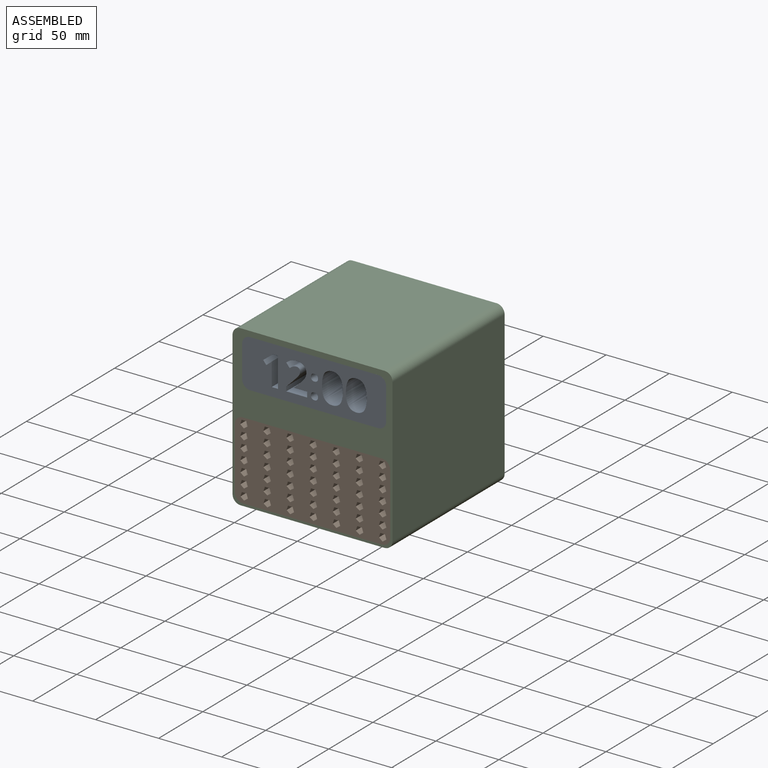
[diagram: assembled view]
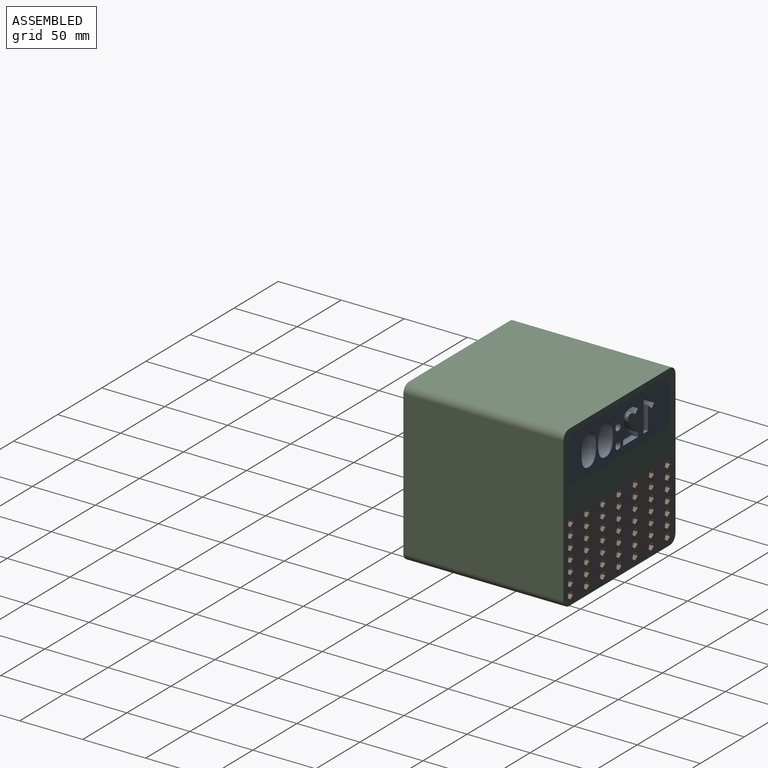
[diagram: assembled view, second angle]
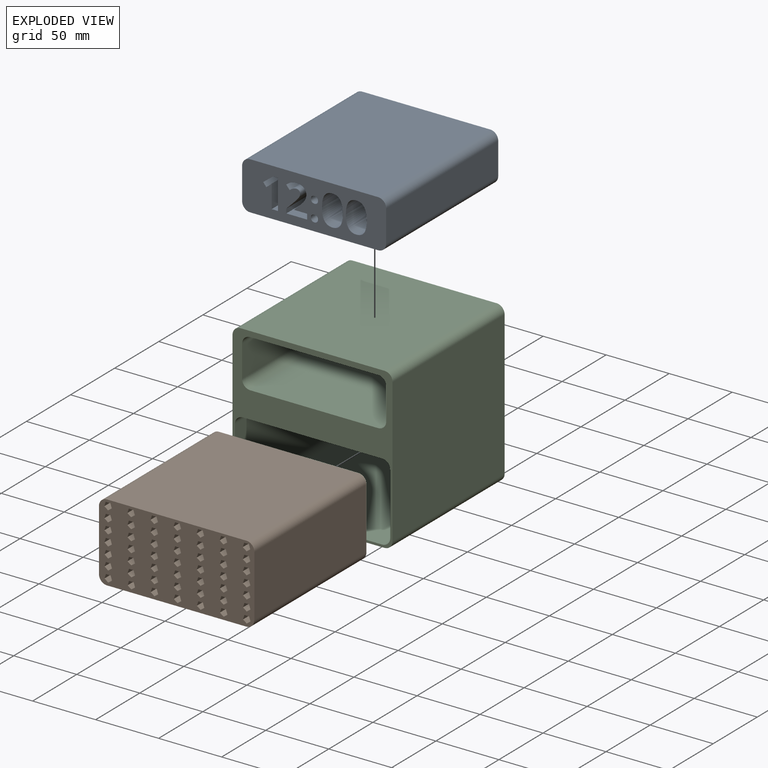
[diagram: exploded view]
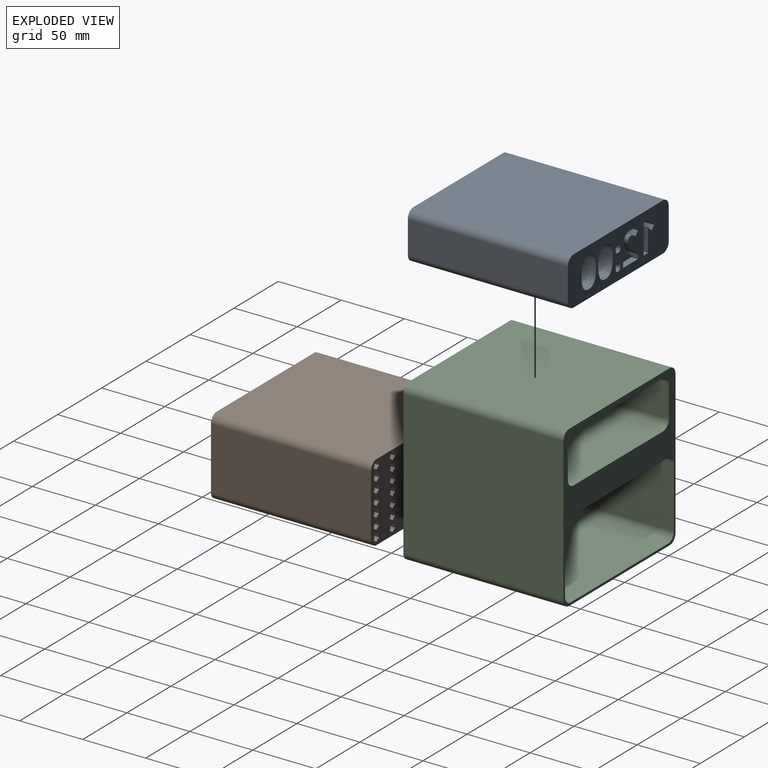
[diagram: exploded view, second angle]
ASSEMBLY  parts=3 mates=2
PART A: 76 faces, bbox 114.3x127x38.1 mm
  f0: extruded ~127x6.2mm, area 921.5mm2, adj f1,f73,f74,f75
  f1: extruded ~127x9.12mm, area 1205.2mm2, adj f0,f2,f74,f75
  f2: extruded ~127x9.19mm, area 1212.6mm2, adj f1,f3,f74,f75
  f3: extruded ~127x6.27mm, area 921.1mm2, adj f2,f4,f74,f75
  f4: extruded ~127x6.19mm, area 917.7mm2, adj f3,f5,f74,f75
  f5: extruded ~127x9.1mm, area 1202.2mm2, adj f4,f6,f74,f75
  f6: extruded ~127x9.26mm, area 1220.3mm2, adj f5,f73,f74,f75
  f7: extruded ~127x6.2mm, area 921.5mm2, adj f8,f67,f74,f75
  f8: extruded ~127x9.12mm, area 1205.2mm2, adj f7,f9,f74,f75
  f9: extruded ~127x9.19mm, area 1212.6mm2, adj f8,f10,f74,f75
  f10: extruded ~127x6.27mm, area 921.1mm2, adj f9,f11,f74,f75
  f11: extruded ~127x6.19mm, area 917.7mm2, adj f10,f12,f74,f75
  f12: extruded ~127x9.1mm, area 1202.2mm2, adj f11,f13,f74,f75
  f13: extruded ~127x9.26mm, area 1220.3mm2, adj f12,f67,f74,f75
  f14: extruded ~127x2.11mm, area 290.1mm2, adj f15,f68,f74,f75
  f15: extruded ~127x2.04mm, area 284mm2, adj f14,f16,f74,f75
  f16: extruded ~127x2.06mm, area 285.5mm2, adj f15,f17,f74,f75
  f17: extruded ~127x2.13mm, area 291.1mm2, adj f16,f18,f74,f75
  f18: extruded ~127x2.08mm, area 286.7mm2, adj f17,f19,f74,f75
  f19: extruded ~127x2.04mm, area 283.6mm2, adj f18,f20,f74,f75
  f20: extruded ~127x2.03mm, area 283.5mm2, adj f19,f68,f74,f75
  f21: extruded ~127x2.11mm, area 290.5mm2, adj f22,f69,f74,f75
  f22: extruded ~127x2.03mm, area 283mm2, adj f21,f23,f74,f75
  f23: extruded ~127x2.06mm, area 285.2mm2, adj f22,f24,f74,f75
  f24: extruded ~127x2.13mm, area 291.3mm2, adj f23,f25,f74,f75
  f25: extruded ~127x2.08mm, area 286.7mm2, adj f24,f26,f74,f75
  f26: extruded ~127x2.04mm, area 283.6mm2, adj f25,f27,f74,f75
  f27: extruded ~127x2.02mm, area 280.9mm2, adj f26,f69,f74,f75
  f28: plane 127x10.33mm, normal (0,0,-1), area 1312.3mm2, adj f29,f70,f74,f75
  f29: plane 127x4.22mm, normal (-1,0,0), area 535.9mm2, adj f28,f30,f74,f75
  f30: plane 127x16.58mm, normal (0,0,1), area 2105.3mm2, adj f29,f31,f74,f75
  f31: plane 127x3.49mm, normal (1,0,0), area 442.9mm2, adj f30,f32,f74,f75
  f32: plane 127x6.02mm, normal (0.71,0,-0.7), area 1074.8mm2, adj f31,f33,f74,f75
  f33: extruded ~127x3.76mm, area 648.4mm2, adj f32,f34,f74,f75
  f34: extruded ~127x1.94mm, area 288.3mm2, adj f33,f35,f74,f75
  f35: extruded ~127x1.85mm, area 240.5mm2, adj f34,f36,f74,f75
  f36: extruded ~127x2.13mm, area 297mm2, adj f35,f37,f74,f75
  f37: extruded ~127x2.1mm, area 287.8mm2, adj f36,f38,f74,f75
  f38: extruded ~127x2.67mm, area 351.9mm2, adj f37,f39,f74,f75
  f39: extruded ~127x2.71mm, area 414.1mm2, adj f38,f40,f74,f75
  f40: plane 127x3.23mm, normal (0.76,0,0.65), area 536.5mm2, adj f39,f41,f74,f75
  f41: extruded ~127x2.9mm, area 456.4mm2, adj f40,f42,f74,f75
  f42: extruded ~127x2.51mm, area 342.2mm2, adj f41,f43,f74,f75
  f43: extruded ~127x3.05mm, area 390.5mm2, adj f42,f44,f74,f75
  f44: extruded ~127x3.92mm, area 513mm2, adj f43,f45,f74,f75
  f45: extruded ~127x2.64mm, area 448.5mm2, adj f44,f46,f74,f75
  f46: extruded ~127x3.34mm, area 447mm2, adj f45,f47,f74,f75
  f47: extruded ~127x3.08mm, area 399.8mm2, adj f46,f48,f74,f75
  f48: extruded ~127x2.94mm, area 438.7mm2, adj f47,f49,f74,f75
  f49: extruded ~127x4.3mm, area 769mm2, adj f48,f50,f74,f75
  f50: plane 127x3.05mm, normal (-0.69,0,0.73), area 532mm2, adj f49,f70,f74,f75
  f51: plane 127x4.12mm, normal (0,0,-1), area 523.3mm2, adj f52,f71,f74,f75
  f52: plane 127x23.71mm, normal (-1,0,0), area 3011.6mm2, adj f51,f53,f74,f75
  f53: plane 127x5.01mm, normal (0,0,1), area 636.7mm2, adj f52,f54,f74,f75
  f54: plane 127x13.72mm, normal (1,0,0), area 1742.7mm2, adj f53,f55,f74,f75
  f55: plane 127x2.25mm, normal (1,0,-0.02), area 286.1mm2, adj f54,f56,f74,f75
  f56: plane 127x2.47mm, normal (1,0,-0.03), area 313.2mm2, adj f55,f57,f74,f75
  f57: extruded ~127x1.73mm, area 302.7mm2, adj f56,f58,f74,f75
  f58: plane 127x2.72mm, normal (-0.63,0,0.78), area 444mm2, adj f57,f59,f74,f75
  f59: plane 127x3.02mm, normal (0.78,0,0.63), area 490.9mm2, adj f58,f71,f74,f75
  f60: plane 127x101.6mm, normal (0,0,-1), area 12903.2mm2, adj f61,f72,f74,f75
  f61: cylinder r=6.35mm len=127mm, axis (0,1,0), area 1266.8mm2, adj f60,f62,f74,f75
  f62: plane 127x25.4mm, normal (1,0,0), area 3225.8mm2, adj f61,f63,f74,f75
  f63: cylinder r=6.35mm len=127mm, axis (0,1,0), area 1266.8mm2, adj f62,f64,f74,f75
  f64: plane 127x101.6mm, normal (0,0,1), area 12903.2mm2, adj f63,f65,f74,f75
  f65: cylinder r=6.35mm len=127mm, axis (0,1,0), area 1266.8mm2, adj f64,f66,f74,f75
  f66: plane 127x25.4mm, normal (-1,0,0), area 3225.8mm2, adj f65,f72,f74,f75
  f67: extruded ~127x6.24mm, area 917.4mm2, adj f7,f13,f74,f75
  f68: extruded ~127x2.07mm, area 285mm2, adj f14,f20,f74,f75
  f69: extruded ~127x2.07mm, area 287mm2, adj f21,f27,f74,f75
  f70: plane 127x0.22mm, normal (-1,0,0), area 28.3mm2, adj f28,f50,f74,f75
  f71: plane 127x7.64mm, normal (0.62,0,-0.78), area 1240.2mm2, adj f51,f59,f74,f75
  f72: cylinder r=6.35mm len=127mm, axis (0,1,0), area 1266.8mm2, adj f60,f66,f74,f75
  f73: extruded ~127x6.24mm, area 917.4mm2, adj f0,f6,f74,f75
  f74: plane 114.3x38.1mm, normal (0,-1,0), area 3238.5mm2, adj f0,f1,f2,f3,f4,f5,f6,f7
  f75: plane 114.3x38.1mm, normal (0,1,0), area 3238.5mm2, adj f0,f1,f2,f3,f4,f5,f6,f7
PART B: 255 faces, bbox 123.3x127x61.6 mm
  f0: cylinder r=6.35mm len=127mm, axis (0,1,0), area 1266.8mm2, adj f1,f252,f253,f254
  f1: plane 127x110.59mm, normal (0,0,1), area 14045.1mm2, adj f0,f2,f253,f254
  f2: cylinder r=6.35mm len=127mm, axis (0,1,0), area 1266.8mm2, adj f1,f3,f253,f254
  f3: plane 127x48.95mm, normal (-1,0,0), area 6216.1mm2, adj f2,f4,f253,f254
  f4: cylinder r=6.35mm len=127mm, axis (0,1,0), area 1266.8mm2, adj f3,f5,f253,f254
  f5: plane 127x110.59mm, normal (0,0,-1), area 14045.1mm2, adj f4,f6,f253,f254
  f6: cylinder r=6.35mm len=127mm, axis (0,1,0), area 1266.8mm2, adj f5,f252,f253,f254
  f7: plane 127x3.5mm, normal (0.95,0,-0.31), area 468.7mm2, adj f8,f203,f253,f254
  f8: plane 127x3.69mm, normal (-0.01,0,-1), area 468.7mm2, adj f7,f9,f253,f254
  f9: plane 127x3.52mm, normal (-0.95,0,-0.3), area 468.7mm2, adj f8,f10,f253,f254
  f10: plane 127x3mm, normal (-0.58,0,0.81), area 468.7mm2, adj f9,f203,f253,f254
  f11: plane 127x3.5mm, normal (0.95,0,-0.31), area 468.7mm2, adj f12,f204,f253,f254
  f12: plane 127x3.69mm, normal (-0.01,0,-1), area 468.7mm2, adj f11,f13,f253,f254
  f13: plane 127x3.52mm, normal (-0.95,0,-0.3), area 468.7mm2, adj f12,f14,f253,f254
  f14: plane 127x3mm, normal (-0.58,0,0.81), area 468.7mm2, adj f13,f204,f253,f254
  f15: plane 127x3.5mm, normal (0.95,0,-0.31), area 468.7mm2, adj f16,f205,f253,f254
  f16: plane 127x3.69mm, normal (-0.01,0,-1), area 468.7mm2, adj f15,f17,f253,f254
  f17: plane 127x3.52mm, normal (-0.95,0,-0.3), area 468.7mm2, adj f16,f18,f253,f254
  f18: plane 127x3mm, normal (-0.58,0,0.81), area 468.7mm2, adj f17,f205,f253,f254
  f19: plane 127x3.5mm, normal (0.95,0,-0.31), area 468.7mm2, adj f20,f206,f253,f254
  f20: plane 127x3.69mm, normal (-0.01,0,-1), area 468.7mm2, adj f19,f21,f253,f254
  f21: plane 127x3.52mm, normal (-0.95,0,-0.3), area 468.7mm2, adj f20,f22,f253,f254
  f22: plane 127x3mm, normal (-0.58,0,0.81), area 468.7mm2, adj f21,f206,f253,f254
  f23: plane 127x3.5mm, normal (0.95,0,-0.31), area 468.7mm2, adj f24,f207,f253,f254
  f24: plane 127x3.69mm, normal (-0.01,0,-1), area 468.7mm2, adj f23,f25,f253,f254
  f25: plane 127x3.52mm, normal (-0.95,0,-0.3), area 468.7mm2, adj f24,f26,f253,f254
  f26: plane 127x3mm, normal (-0.58,0,0.81), area 468.7mm2, adj f25,f207,f253,f254
  f27: plane 127x3.5mm, normal (0.95,0,-0.31), area 468.7mm2, adj f28,f208,f253,f254
  f28: plane 127x3.69mm, normal (-0.01,0,-1), area 468.7mm2, adj f27,f29,f253,f254
  f29: plane 127x3.52mm, normal (-0.95,0,-0.3), area 468.7mm2, adj f28,f30,f253,f254
  f30: plane 127x3mm, normal (-0.58,0,0.81), area 468.7mm2, adj f29,f208,f253,f254
  f31: plane 127x3.5mm, normal (0.95,0,-0.31), area 468.7mm2, adj f32,f209,f253,f254
  f32: plane 127x3.69mm, normal (-0.01,0,-1), area 468.7mm2, adj f31,f33,f253,f254
  f33: plane 127x3.52mm, normal (-0.95,0,-0.3), area 468.7mm2, adj f32,f34,f253,f254
  f34: plane 127x3mm, normal (-0.58,0,0.81), area 468.7mm2, adj f33,f209,f253,f254
  f35: plane 127x3.5mm, normal (0.95,0,-0.31), area 468.7mm2, adj f36,f210,f253,f254
  f36: plane 127x3.69mm, normal (-0.01,0,-1), area 468.7mm2, adj f35,f37,f253,f254
  f37: plane 127x3.52mm, normal (-0.95,0,-0.3), area 468.7mm2, adj f36,f38,f253,f254
  f38: plane 127x3mm, normal (-0.58,0,0.81), area 468.7mm2, adj f37,f210,f253,f254
  f39: plane 127x3.5mm, normal (0.95,0,-0.31), area 468.7mm2, adj f40,f211,f253,f254
  f40: plane 127x3.69mm, normal (-0.01,0,-1), area 468.7mm2, adj f39,f41,f253,f254
  f41: plane 127x3.52mm, normal (-0.95,0,-0.3), area 468.7mm2, adj f40,f42,f253,f254
  f42: plane 127x3mm, normal (-0.58,0,0.81), area 468.7mm2, adj f41,f211,f253,f254
  f43: plane 127x3.5mm, normal (0.95,0,-0.31), area 468.7mm2, adj f44,f212,f253,f254
  f44: plane 127x3.69mm, normal (-0.01,0,-1), area 468.7mm2, adj f43,f45,f253,f254
  f45: plane 127x3.52mm, normal (-0.95,0,-0.3), area 468.7mm2, adj f44,f46,f253,f254
  f46: plane 127x3mm, normal (-0.58,0,0.81), area 468.7mm2, adj f45,f212,f253,f254
  f47: plane 127x3.5mm, normal (0.95,0,-0.31), area 468.7mm2, adj f48,f213,f253,f254
  f48: plane 127x3.69mm, normal (-0.01,0,-1), area 468.7mm2, adj f47,f49,f253,f254
  f49: plane 127x3.52mm, normal (-0.95,0,-0.3), area 468.7mm2, adj f48,f50,f253,f254
  f50: plane 127x3mm, normal (-0.58,0,0.81), area 468.7mm2, adj f49,f213,f253,f254
  f51: plane 127x3.5mm, normal (0.95,0,-0.31), area 468.7mm2, adj f52,f214,f253,f254
  f52: plane 127x3.69mm, normal (-0.01,0,-1), area 468.7mm2, adj f51,f53,f253,f254
  f53: plane 127x3.52mm, normal (-0.95,0,-0.3), area 468.7mm2, adj f52,f54,f253,f254
  f54: plane 127x3mm, normal (-0.58,0,0.81), area 468.7mm2, adj f53,f214,f253,f254
  f55: plane 127x3.5mm, normal (0.95,0,-0.31), area 468.7mm2, adj f56,f215,f253,f254
  f56: plane 127x3.69mm, normal (-0.01,0,-1), area 468.7mm2, adj f55,f57,f253,f254
  f57: plane 127x3.52mm, normal (-0.95,0,-0.3), area 468.7mm2, adj f56,f58,f253,f254
  f58: plane 127x3mm, normal (-0.58,0,0.81), area 468.7mm2, adj f57,f215,f253,f254
  f59: plane 127x3.5mm, normal (0.95,0,-0.31), area 468.7mm2, adj f60,f216,f253,f254
  f60: plane 127x3.69mm, normal (-0.01,0,-1), area 468.7mm2, adj f59,f61,f253,f254
  f61: plane 127x3.52mm, normal (-0.95,0,-0.3), area 468.7mm2, adj f60,f62,f253,f254
  f62: plane 127x3mm, normal (-0.58,0,0.81), area 468.7mm2, adj f61,f216,f253,f254
  f63: plane 127x3.5mm, normal (0.95,0,-0.31), area 468.7mm2, adj f64,f217,f253,f254
  f64: plane 127x3.69mm, normal (-0.01,0,-1), area 468.7mm2, adj f63,f65,f253,f254
  f65: plane 127x3.52mm, normal (-0.95,0,-0.3), area 468.7mm2, adj f64,f66,f253,f254
  f66: plane 127x3mm, normal (-0.58,0,0.81), area 468.7mm2, adj f65,f217,f253,f254
  f67: plane 127x3.5mm, normal (0.95,0,-0.31), area 468.7mm2, adj f68,f218,f253,f254
  f68: plane 127x3.69mm, normal (-0.01,0,-1), area 468.7mm2, adj f67,f69,f253,f254
  f69: plane 127x3.52mm, normal (-0.95,0,-0.3), area 468.7mm2, adj f68,f70,f253,f254
  f70: plane 127x3mm, normal (-0.58,0,0.81), area 468.7mm2, adj f69,f218,f253,f254
  f71: plane 127x3.5mm, normal (0.95,0,-0.31), area 468.7mm2, adj f72,f219,f253,f254
  f72: plane 127x3.69mm, normal (-0.01,0,-1), area 468.7mm2, adj f71,f73,f253,f254
  f73: plane 127x3.52mm, normal (-0.95,0,-0.3), area 468.7mm2, adj f72,f74,f253,f254
  f74: plane 127x3mm, normal (-0.58,0,0.81), area 468.7mm2, adj f73,f219,f253,f254
  f75: plane 127x3.5mm, normal (0.95,0,-0.31), area 468.7mm2, adj f76,f220,f253,f254
  f76: plane 127x3.69mm, normal (-0.01,0,-1), area 468.7mm2, adj f75,f77,f253,f254
  f77: plane 127x3.52mm, normal (-0.95,0,-0.3), area 468.7mm2, adj f76,f78,f253,f254
  f78: plane 127x3mm, normal (-0.58,0,0.81), area 468.7mm2, adj f77,f220,f253,f254
  f79: plane 127x3.5mm, normal (0.95,0,-0.31), area 468.7mm2, adj f80,f221,f253,f254
  f80: plane 127x3.69mm, normal (-0.01,0,-1), area 468.7mm2, adj f79,f81,f253,f254
  f81: plane 127x3.52mm, normal (-0.95,0,-0.3), area 468.7mm2, adj f80,f82,f253,f254
  f82: plane 127x3mm, normal (-0.58,0,0.81), area 468.7mm2, adj f81,f221,f253,f254
  f83: plane 127x3.5mm, normal (0.95,0,-0.31), area 468.7mm2, adj f84,f222,f253,f254
  f84: plane 127x3.69mm, normal (-0.01,0,-1), area 468.7mm2, adj f83,f85,f253,f254
  f85: plane 127x3.52mm, normal (-0.95,0,-0.3), area 468.7mm2, adj f84,f86,f253,f254
  f86: plane 127x3mm, normal (-0.58,0,0.81), area 468.7mm2, adj f85,f222,f253,f254
  f87: plane 127x3.5mm, normal (0.95,0,-0.31), area 468.7mm2, adj f88,f223,f253,f254
  f88: plane 127x3.69mm, normal (-0.01,0,-1), area 468.7mm2, adj f87,f89,f253,f254
  f89: plane 127x3.52mm, normal (-0.95,0,-0.3), area 468.7mm2, adj f88,f90,f253,f254
  f90: plane 127x3mm, normal (-0.58,0,0.81), area 468.7mm2, adj f89,f223,f253,f254
  f91: plane 127x3.5mm, normal (0.95,0,-0.31), area 468.7mm2, adj f92,f224,f253,f254
  f92: plane 127x3.69mm, normal (-0.01,0,-1), area 468.7mm2, adj f91,f93,f253,f254
  f93: plane 127x3.52mm, normal (-0.95,0,-0.3), area 468.7mm2, adj f92,f94,f253,f254
  f94: plane 127x3mm, normal (-0.58,0,0.81), area 468.7mm2, adj f93,f224,f253,f254
  f95: plane 127x3.5mm, normal (0.95,0,-0.31), area 468.7mm2, adj f96,f225,f253,f254
  f96: plane 127x3.69mm, normal (-0.01,0,-1), area 468.7mm2, adj f95,f97,f253,f254
  f97: plane 127x3.52mm, normal (-0.95,0,-0.3), area 468.7mm2, adj f96,f98,f253,f254
  f98: plane 127x3mm, normal (-0.58,0,0.81), area 468.7mm2, adj f97,f225,f253,f254
  f99: plane 127x3.5mm, normal (0.95,0,-0.31), area 468.7mm2, adj f100,f226,f253,f254
  f100: plane 127x3.69mm, normal (-0.01,0,-1), area 468.7mm2, adj f99,f101,f253,f254
  f101: plane 127x3.52mm, normal (-0.95,0,-0.3), area 468.7mm2, adj f100,f102,f253,f254
  f102: plane 127x3mm, normal (-0.58,0,0.81), area 468.7mm2, adj f101,f226,f253,f254
  f103: plane 127x3.5mm, normal (0.95,0,-0.31), area 468.7mm2, adj f104,f227,f253,f254
  f104: plane 127x3.69mm, normal (-0.01,0,-1), area 468.7mm2, adj f103,f105,f253,f254
  f105: plane 127x3.52mm, normal (-0.95,0,-0.3), area 468.7mm2, adj f104,f106,f253,f254
  f106: plane 127x3mm, normal (-0.58,0,0.81), area 468.7mm2, adj f105,f227,f253,f254
  f107: plane 127x3.5mm, normal (0.95,0,-0.31), area 468.7mm2, adj f108,f228,f253,f254
  f108: plane 127x3.69mm, normal (-0.01,0,-1), area 468.7mm2, adj f107,f109,f253,f254
  f109: plane 127x3.52mm, normal (-0.95,0,-0.3), area 468.7mm2, adj f108,f110,f253,f254
  f110: plane 127x3mm, normal (-0.58,0,0.81), area 468.7mm2, adj f109,f228,f253,f254
  f111: plane 127x3.5mm, normal (0.95,0,-0.31), area 468.7mm2, adj f112,f229,f253,f254
  f112: plane 127x3.69mm, normal (-0.01,0,-1), area 468.7mm2, adj f111,f113,f253,f254
  f113: plane 127x3.52mm, normal (-0.95,0,-0.3), area 468.7mm2, adj f112,f114,f253,f254
  f114: plane 127x3mm, normal (-0.58,0,0.81), area 468.7mm2, adj f113,f229,f253,f254
  f115: plane 127x3.5mm, normal (0.95,0,-0.31), area 468.7mm2, adj f116,f230,f253,f254
  f116: plane 127x3.69mm, normal (-0.01,0,-1), area 468.7mm2, adj f115,f117,f253,f254
  f117: plane 127x3.52mm, normal (-0.95,0,-0.3), area 468.7mm2, adj f116,f118,f253,f254
  f118: plane 127x3mm, normal (-0.58,0,0.81), area 468.7mm2, adj f117,f230,f253,f254
  f119: plane 127x3.5mm, normal (0.95,0,-0.31), area 468.7mm2, adj f120,f231,f253,f254
  f120: plane 127x3.69mm, normal (-0.01,0,-1), area 468.7mm2, adj f119,f121,f253,f254
  f121: plane 127x3.52mm, normal (-0.95,0,-0.3), area 468.7mm2, adj f120,f122,f253,f254
  f122: plane 127x3mm, normal (-0.58,0,0.81), area 468.7mm2, adj f121,f231,f253,f254
  f123: plane 127x3.5mm, normal (0.95,0,-0.31), area 468.7mm2, adj f124,f232,f253,f254
  f124: plane 127x3.69mm, normal (-0.01,0,-1), area 468.7mm2, adj f123,f125,f253,f254
  f125: plane 127x3.52mm, normal (-0.95,0,-0.3), area 468.7mm2, adj f124,f126,f253,f254
  f126: plane 127x3mm, normal (-0.58,0,0.81), area 468.7mm2, adj f125,f232,f253,f254
  f127: plane 127x3.5mm, normal (0.95,0,-0.31), area 468.7mm2, adj f128,f233,f253,f254
  f128: plane 127x3.69mm, normal (-0.01,0,-1), area 468.7mm2, adj f127,f129,f253,f254
  f129: plane 127x3.52mm, normal (-0.95,0,-0.3), area 468.7mm2, adj f128,f130,f253,f254
  f130: plane 127x3mm, normal (-0.58,0,0.81), area 468.7mm2, adj f129,f233,f253,f254
  f131: plane 127x3.5mm, normal (0.95,0,-0.31), area 468.7mm2, adj f132,f234,f253,f254
  f132: plane 127x3.69mm, normal (-0.01,0,-1), area 468.7mm2, adj f131,f133,f253,f254
  f133: plane 127x3.52mm, normal (-0.95,0,-0.3), area 468.7mm2, adj f132,f134,f253,f254
  f134: plane 127x3mm, normal (-0.58,0,0.81), area 468.7mm2, adj f133,f234,f253,f254
  f135: plane 127x3.5mm, normal (0.95,0,-0.31), area 468.7mm2, adj f136,f235,f253,f254
  f136: plane 127x3.69mm, normal (-0.01,0,-1), area 468.7mm2, adj f135,f137,f253,f254
  f137: plane 127x3.52mm, normal (-0.95,0,-0.3), area 468.7mm2, adj f136,f138,f253,f254
  f138: plane 127x3mm, normal (-0.58,0,0.81), area 468.7mm2, adj f137,f235,f253,f254
  f139: plane 127x3.5mm, normal (0.95,0,-0.31), area 468.7mm2, adj f140,f236,f253,f254
  f140: plane 127x3.69mm, normal (-0.01,0,-1), area 468.7mm2, adj f139,f141,f253,f254
  f141: plane 127x3.52mm, normal (-0.95,0,-0.3), area 468.7mm2, adj f140,f142,f253,f254
  f142: plane 127x3mm, normal (-0.58,0,0.81), area 468.7mm2, adj f141,f236,f253,f254
  f143: plane 127x3.5mm, normal (0.95,0,-0.31), area 468.7mm2, adj f144,f237,f253,f254
  f144: plane 127x3.69mm, normal (-0.01,0,-1), area 468.7mm2, adj f143,f145,f253,f254
  f145: plane 127x3.52mm, normal (-0.95,0,-0.3), area 468.7mm2, adj f144,f146,f253,f254
  f146: plane 127x3mm, normal (-0.58,0,0.81), area 468.7mm2, adj f145,f237,f253,f254
  f147: plane 127x3.5mm, normal (0.95,0,-0.31), area 468.7mm2, adj f148,f238,f253,f254
  f148: plane 127x3.69mm, normal (-0.01,0,-1), area 468.7mm2, adj f147,f149,f253,f254
  f149: plane 127x3.52mm, normal (-0.95,0,-0.3), area 468.7mm2, adj f148,f150,f253,f254
  f150: plane 127x3mm, normal (-0.58,0,0.81), area 468.7mm2, adj f149,f238,f253,f254
  f151: plane 127x3.5mm, normal (0.95,0,-0.31), area 468.7mm2, adj f152,f239,f253,f254
  f152: plane 127x3.69mm, normal (-0.01,0,-1), area 468.7mm2, adj f151,f153,f253,f254
  f153: plane 127x3.52mm, normal (-0.95,0,-0.3), area 468.7mm2, adj f152,f154,f253,f254
  f154: plane 127x3mm, normal (-0.58,0,0.81), area 468.7mm2, adj f153,f239,f253,f254
  f155: plane 127x3.5mm, normal (0.95,0,-0.31), area 468.7mm2, adj f156,f240,f253,f254
  f156: plane 127x3.69mm, normal (-0.01,0,-1), area 468.7mm2, adj f155,f157,f253,f254
  f157: plane 127x3.52mm, normal (-0.95,0,-0.3), area 468.7mm2, adj f156,f158,f253,f254
  f158: plane 127x3mm, normal (-0.58,0,0.81), area 468.7mm2, adj f157,f240,f253,f254
  f159: plane 127x3.5mm, normal (0.95,0,-0.31), area 468.7mm2, adj f160,f241,f253,f254
  f160: plane 127x3.69mm, normal (-0.01,0,-1), area 468.7mm2, adj f159,f161,f253,f254
  f161: plane 127x3.52mm, normal (-0.95,0,-0.3), area 468.7mm2, adj f160,f162,f253,f254
  f162: plane 127x3mm, normal (-0.58,0,0.81), area 468.7mm2, adj f161,f241,f253,f254
  f163: plane 127x3.5mm, normal (0.95,0,-0.31), area 468.7mm2, adj f164,f242,f253,f254
  f164: plane 127x3.69mm, normal (-0.01,0,-1), area 468.7mm2, adj f163,f165,f253,f254
  f165: plane 127x3.52mm, normal (-0.95,0,-0.3), area 468.7mm2, adj f164,f166,f253,f254
  f166: plane 127x3mm, normal (-0.58,0,0.81), area 468.7mm2, adj f165,f242,f253,f254
  f167: plane 127x3.5mm, normal (0.95,0,-0.31), area 468.7mm2, adj f168,f243,f253,f254
  f168: plane 127x3.69mm, normal (-0.01,0,-1), area 468.7mm2, adj f167,f169,f253,f254
  f169: plane 127x3.52mm, normal (-0.95,0,-0.3), area 468.7mm2, adj f168,f170,f253,f254
  f170: plane 127x3mm, normal (-0.58,0,0.81), area 468.7mm2, adj f169,f243,f253,f254
  f171: plane 127x3.5mm, normal (0.95,0,-0.31), area 468.7mm2, adj f172,f244,f253,f254
  f172: plane 127x3.69mm, normal (-0.01,0,-1), area 468.7mm2, adj f171,f173,f253,f254
  f173: plane 127x3.52mm, normal (-0.95,0,-0.3), area 468.7mm2, adj f172,f174,f253,f254
  f174: plane 127x3mm, normal (-0.58,0,0.81), area 468.7mm2, adj f173,f244,f253,f254
  f175: plane 127x3.5mm, normal (0.95,0,-0.31), area 468.7mm2, adj f176,f245,f253,f254
  f176: plane 127x3.69mm, normal (-0.01,0,-1), area 468.7mm2, adj f175,f177,f253,f254
  f177: plane 127x3.52mm, normal (-0.95,0,-0.3), area 468.7mm2, adj f176,f178,f253,f254
  f178: plane 127x3mm, normal (-0.58,0,0.81), area 468.7mm2, adj f177,f245,f253,f254
  f179: plane 127x3.5mm, normal (0.95,0,-0.31), area 468.7mm2, adj f180,f246,f253,f254
  f180: plane 127x3.69mm, normal (-0.01,0,-1), area 468.7mm2, adj f179,f181,f253,f254
  f181: plane 127x3.52mm, normal (-0.95,0,-0.3), area 468.7mm2, adj f180,f182,f253,f254
  f182: plane 127x3mm, normal (-0.58,0,0.81), area 468.7mm2, adj f181,f246,f253,f254
  f183: plane 127x3.5mm, normal (0.95,0,-0.31), area 468.7mm2, adj f184,f247,f253,f254
  f184: plane 127x3.69mm, normal (-0.01,0,-1), area 468.7mm2, adj f183,f185,f253,f254
  f185: plane 127x3.52mm, normal (-0.95,0,-0.3), area 468.7mm2, adj f184,f186,f253,f254
  f186: plane 127x3mm, normal (-0.58,0,0.81), area 468.7mm2, adj f185,f247,f253,f254
  f187: plane 127x3.5mm, normal (0.95,0,-0.31), area 468.7mm2, adj f188,f248,f253,f254
  f188: plane 127x3.69mm, normal (-0.01,0,-1), area 468.7mm2, adj f187,f189,f253,f254
  f189: plane 127x3.52mm, normal (-0.95,0,-0.3), area 468.7mm2, adj f188,f190,f253,f254
  f190: plane 127x3mm, normal (-0.58,0,0.81), area 468.7mm2, adj f189,f248,f253,f254
  f191: plane 127x3.5mm, normal (0.95,0,-0.31), area 468.7mm2, adj f192,f249,f253,f254
  f192: plane 127x3.69mm, normal (-0.01,0,-1), area 468.7mm2, adj f191,f193,f253,f254
  f193: plane 127x3.52mm, normal (-0.95,0,-0.3), area 468.7mm2, adj f192,f194,f253,f254
  f194: plane 127x3mm, normal (-0.58,0,0.81), area 468.7mm2, adj f193,f249,f253,f254
  f195: plane 127x3.5mm, normal (0.95,0,-0.31), area 468.7mm2, adj f196,f250,f253,f254
  f196: plane 127x3.69mm, normal (-0.01,0,-1), area 468.7mm2, adj f195,f197,f253,f254
  f197: plane 127x3.52mm, normal (-0.95,0,-0.3), area 468.7mm2, adj f196,f198,f253,f254
  f198: plane 127x3mm, normal (-0.58,0,0.81), area 468.7mm2, adj f197,f250,f253,f254
  f199: plane 127x3.69mm, normal (-0.01,0,-1), area 468.7mm2, adj f200,f251,f253,f254
  f200: plane 127x3.52mm, normal (-0.95,0,-0.3), area 468.7mm2, adj f199,f201,f253,f254
  f201: plane 127x3mm, normal (-0.58,0,0.81), area 468.7mm2, adj f200,f202,f253,f254
  f202: plane 127x2.97mm, normal (0.59,0,0.81), area 468.7mm2, adj f201,f251,f253,f254
  f203: plane 127x2.97mm, normal (0.59,0,0.81), area 468.7mm2, adj f7,f10,f253,f254
  f204: plane 127x2.97mm, normal (0.59,0,0.81), area 468.7mm2, adj f11,f14,f253,f254
  f205: plane 127x2.97mm, normal (0.59,0,0.81), area 468.7mm2, adj f15,f18,f253,f254
  f206: plane 127x2.97mm, normal (0.59,0,0.81), area 468.7mm2, adj f19,f22,f253,f254
  f207: plane 127x2.97mm, normal (0.59,0,0.81), area 468.7mm2, adj f23,f26,f253,f254
  f208: plane 127x2.97mm, normal (0.59,0,0.81), area 468.7mm2, adj f27,f30,f253,f254
  f209: plane 127x2.97mm, normal (0.59,0,0.81), area 468.7mm2, adj f31,f34,f253,f254
  f210: plane 127x2.97mm, normal (0.59,0,0.81), area 468.7mm2, adj f35,f38,f253,f254
  f211: plane 127x2.97mm, normal (0.59,0,0.81), area 468.7mm2, adj f39,f42,f253,f254
  f212: plane 127x2.97mm, normal (0.59,0,0.81), area 468.7mm2, adj f43,f46,f253,f254
  f213: plane 127x2.97mm, normal (0.59,0,0.81), area 468.7mm2, adj f47,f50,f253,f254
  f214: plane 127x2.97mm, normal (0.59,0,0.81), area 468.7mm2, adj f51,f54,f253,f254
  f215: plane 127x2.97mm, normal (0.59,0,0.81), area 468.7mm2, adj f55,f58,f253,f254
  f216: plane 127x2.97mm, normal (0.59,0,0.81), area 468.7mm2, adj f59,f62,f253,f254
  f217: plane 127x2.97mm, normal (0.59,0,0.81), area 468.7mm2, adj f63,f66,f253,f254
  f218: plane 127x2.97mm, normal (0.59,0,0.81), area 468.7mm2, adj f67,f70,f253,f254
  f219: plane 127x2.97mm, normal (0.59,0,0.81), area 468.7mm2, adj f71,f74,f253,f254
  f220: plane 127x2.97mm, normal (0.59,0,0.81), area 468.7mm2, adj f75,f78,f253,f254
  f221: plane 127x2.97mm, normal (0.59,0,0.81), area 468.7mm2, adj f79,f82,f253,f254
  f222: plane 127x2.97mm, normal (0.59,0,0.81), area 468.7mm2, adj f83,f86,f253,f254
  f223: plane 127x2.97mm, normal (0.59,0,0.81), area 468.7mm2, adj f87,f90,f253,f254
  f224: plane 127x2.97mm, normal (0.59,0,0.81), area 468.7mm2, adj f91,f94,f253,f254
  f225: plane 127x2.97mm, normal (0.59,0,0.81), area 468.7mm2, adj f95,f98,f253,f254
  f226: plane 127x2.97mm, normal (0.59,0,0.81), area 468.7mm2, adj f99,f102,f253,f254
  f227: plane 127x2.97mm, normal (0.59,0,0.81), area 468.7mm2, adj f103,f106,f253,f254
  f228: plane 127x2.97mm, normal (0.59,0,0.81), area 468.7mm2, adj f107,f110,f253,f254
  f229: plane 127x2.97mm, normal (0.59,0,0.81), area 468.7mm2, adj f111,f114,f253,f254
  f230: plane 127x2.97mm, normal (0.59,0,0.81), area 468.7mm2, adj f115,f118,f253,f254
  f231: plane 127x2.97mm, normal (0.59,0,0.81), area 468.7mm2, adj f119,f122,f253,f254
  f232: plane 127x2.97mm, normal (0.59,0,0.81), area 468.7mm2, adj f123,f126,f253,f254
  f233: plane 127x2.97mm, normal (0.59,0,0.81), area 468.7mm2, adj f127,f130,f253,f254
  f234: plane 127x2.97mm, normal (0.59,0,0.81), area 468.7mm2, adj f131,f134,f253,f254
  f235: plane 127x2.97mm, normal (0.59,0,0.81), area 468.7mm2, adj f135,f138,f253,f254
  f236: plane 127x2.97mm, normal (0.59,0,0.81), area 468.7mm2, adj f139,f142,f253,f254
  f237: plane 127x2.97mm, normal (0.59,0,0.81), area 468.7mm2, adj f143,f146,f253,f254
  f238: plane 127x2.97mm, normal (0.59,0,0.81), area 468.7mm2, adj f147,f150,f253,f254
  f239: plane 127x2.97mm, normal (0.59,0,0.81), area 468.7mm2, adj f151,f154,f253,f254
  f240: plane 127x2.97mm, normal (0.59,0,0.81), area 468.7mm2, adj f155,f158,f253,f254
  f241: plane 127x2.97mm, normal (0.59,0,0.81), area 468.7mm2, adj f159,f162,f253,f254
  f242: plane 127x2.97mm, normal (0.59,0,0.81), area 468.7mm2, adj f163,f166,f253,f254
  f243: plane 127x2.97mm, normal (0.59,0,0.81), area 468.7mm2, adj f167,f170,f253,f254
  f244: plane 127x2.97mm, normal (0.59,0,0.81), area 468.7mm2, adj f171,f174,f253,f254
  f245: plane 127x2.97mm, normal (0.59,0,0.81), area 468.7mm2, adj f175,f178,f253,f254
  f246: plane 127x2.97mm, normal (0.59,0,0.81), area 468.7mm2, adj f179,f182,f253,f254
  f247: plane 127x2.97mm, normal (0.59,0,0.81), area 468.7mm2, adj f183,f186,f253,f254
  f248: plane 127x2.97mm, normal (0.59,0,0.81), area 468.7mm2, adj f187,f190,f253,f254
  f249: plane 127x2.97mm, normal (0.59,0,0.81), area 468.7mm2, adj f191,f194,f253,f254
  f250: plane 127x2.97mm, normal (0.59,0,0.81), area 468.7mm2, adj f195,f198,f253,f254
  f251: plane 127x3.5mm, normal (0.95,0,-0.31), area 468.7mm2, adj f199,f202,f253,f254
  f252: plane 127x48.95mm, normal (1,0,0), area 6216.1mm2, adj f0,f6,f253,f254
  f253: plane 123.29x61.65mm, normal (0,-1,0), area 6417.4mm2, adj f0,f1,f2,f3,f4,f5,f6,f7
  f254: plane 123.29x61.65mm, normal (0,1,0), area 6417.4mm2, adj f0,f1,f2,f3,f4,f5,f6,f7
PART C: 26 faces, bbox 127x127x127 mm
  f0: cylinder r=6.35mm len=127mm, axis (0,1,0), area 1266.8mm2, adj f1,f23,f24,f25
  f1: plane 127x114.3mm, normal (0,0,1), area 14516.1mm2, adj f0,f2,f24,f25
  f2: cylinder r=6.35mm len=127mm, axis (0,1,0), area 1266.8mm2, adj f1,f3,f24,f25
  f3: plane 127x114.3mm, normal (-1,0,0), area 14516.1mm2, adj f2,f4,f24,f25
  f4: cylinder r=6.35mm len=127mm, axis (0,1,0), area 1266.8mm2, adj f3,f5,f24,f25
  f5: plane 127x114.3mm, normal (0,0,-1), area 14516.1mm2, adj f4,f6,f24,f25
  f6: cylinder r=6.35mm len=127mm, axis (0,1,0), area 1266.8mm2, adj f5,f23,f24,f25
  f7: plane 127x110.58mm, normal (0,0,1), area 14043.7mm2, adj f8,f21,f24,f25
  f8: cylinder r=6.35mm len=127mm, axis (0,1,0), area 1266.8mm2, adj f7,f9,f24,f25
  f9: plane 127x48.94mm, normal (1,0,0), area 6215.4mm2, adj f8,f10,f24,f25
  f10: cylinder r=6.35mm len=127mm, axis (0,1,0), area 1266.8mm2, adj f9,f11,f24,f25
  f11: plane 127x110.58mm, normal (0,0,-1), area 14043.7mm2, adj f10,f12,f24,f25
  f12: cylinder r=6.35mm len=127mm, axis (0,1,0), area 1266.8mm2, adj f11,f13,f24,f25
  f13: plane 127x48.94mm, normal (-1,0,0), area 6215.4mm2, adj f12,f21,f24,f25
  f14: cylinder r=6.35mm len=127mm, axis (0,1,0), area 1266.8mm2, adj f15,f22,f24,f25
  f15: plane 127x101.6mm, normal (0,0,-1), area 12903.2mm2, adj f14,f16,f24,f25
  f16: cylinder r=6.35mm len=127mm, axis (0,1,0), area 1266.8mm2, adj f15,f17,f24,f25
  f17: plane 127x25.4mm, normal (-1,0,0), area 3225.8mm2, adj f16,f18,f24,f25
  f18: cylinder r=6.35mm len=127mm, axis (0,1,0), area 1266.8mm2, adj f17,f19,f24,f25
  f19: plane 127x101.6mm, normal (0,0,1), area 12903.2mm2, adj f18,f20,f24,f25
  f20: cylinder r=6.35mm len=127mm, axis (0,1,0), area 1266.8mm2, adj f19,f22,f24,f25
  f21: cylinder r=6.35mm len=127mm, axis (0,1,0), area 1266.8mm2, adj f7,f13,f24,f25
  f22: plane 127x25.4mm, normal (1,0,0), area 3225.8mm2, adj f14,f20,f24,f25
  f23: plane 127x114.3mm, normal (1,0,0), area 14516.1mm2, adj f0,f6,f24,f25
  f24: plane 127x127mm, normal (0,-1,0), area 4209.8mm2, adj f0,f1,f2,f3,f4,f5,f6,f7
  f25: plane 127x127mm, normal (0,1,0), area 4209.8mm2, adj f0,f1,f2,f3,f4,f5,f6,f7
PLACE A t=(300.51,195.35,-21.29)mm
PLACE B t=(299.23,195.35,-92.19)mm
PLACE C t=(299.24,195.35,-61.37)mm
MATE fastened B.f252 <-> C.f13  axis (1,0,0) through (360.88,131.85,-92.19)mm
MATE fastened A.f64 <-> C.f15  axis (0,0,1) through (300.51,131.85,-2.24)mm
